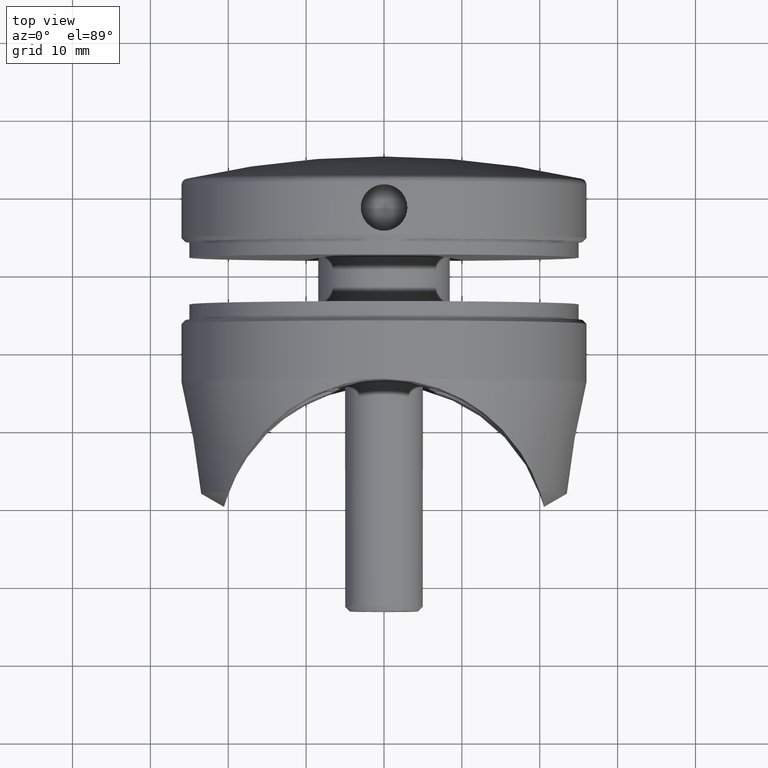
[diagram: clean part render]
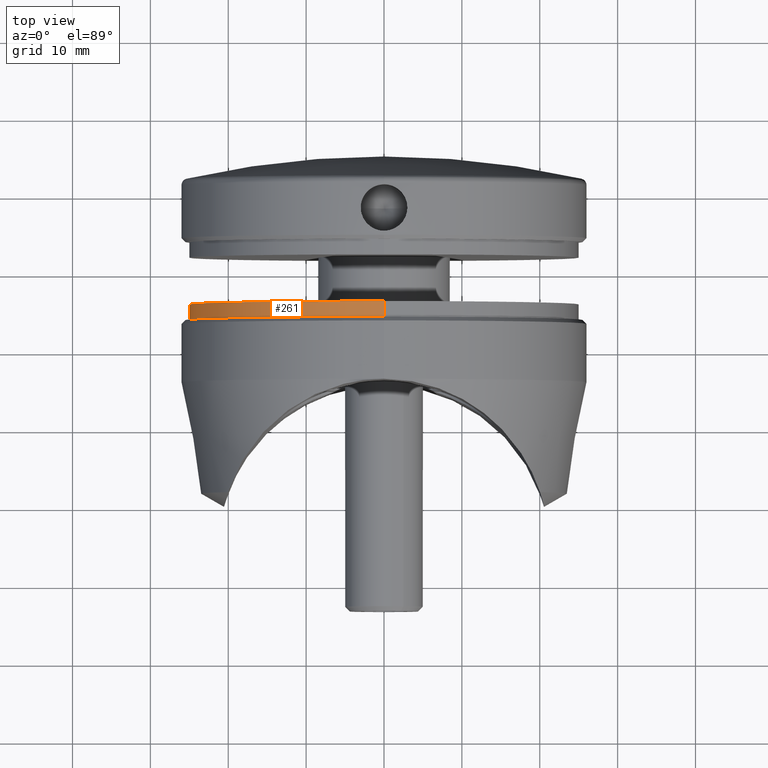
[diagram: same view with one face highlighted and labeled with its STEP entity id]
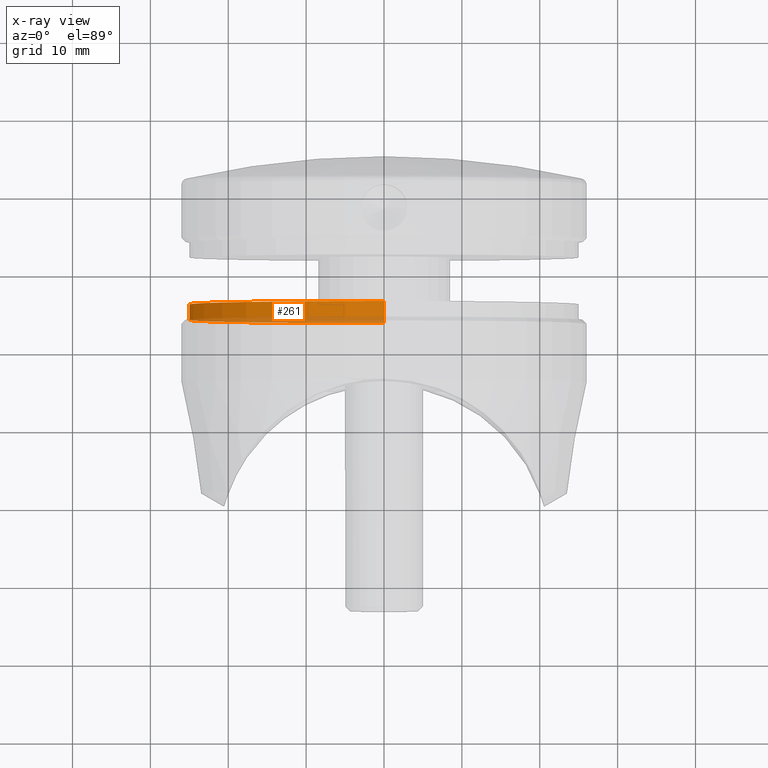
[diagram: x-ray of the same camera — body ghosted, the highlighted face saturated]
A machine part, top view. The second image highlights one B-rep face of the part: STEP entity #261.
The next image is the same camera in x-ray: the body ghosted, the highlighted face saturated — about 25% of this face is hidden behind the body in this view.
In plain terms, the highlighted cylindrical surface (partial cylindrical patch) has radius 25 mm, axis along (-0, -1, -0).
Its self-contained STEP definition (entity closure, byte-faithful):
#6 = ORIENTED_EDGE ( 'NONE', *, *, #4155, .T. ) ;
#261 = ADVANCED_FACE ( 'NONE', ( #5665 ), #1268, .T. ) ;
#400 = AXIS2_PLACEMENT_3D ( 'NONE', #7064, #15627, #8302 ) ;
#1256 = VERTEX_POINT ( 'NONE', #10499 ) ;
#1268 = CYLINDRICAL_SURFACE ( 'NONE', #11538, 25.00000000000000000 ) ;
#1302 = CARTESIAN_POINT ( 'NONE',  ( 0.000000000000000000, -1.000000000000000000, -25.00000000000000000 ) ) ;
#1605 = ORIENTED_EDGE ( 'NONE', *, *, #13771, .F. ) ;
#2272 = CARTESIAN_POINT ( 'NONE',  ( 3.061616997868383043E-15, 1.000000000000000000, 25.00000000000000000 ) ) ;
#2957 = VERTEX_POINT ( 'NONE', #3136 ) ;
#3136 = CARTESIAN_POINT ( 'NONE',  ( 3.061616997868383043E-15, -1.000000000000000000, 25.00000000000000000 ) ) ;
#3454 = CIRCLE ( 'NONE', #5480, 25.00000000000000000 ) ;
#3459 = VECTOR ( 'NONE', #12991, 1000.000000000000000 ) ;
#4001 = CARTESIAN_POINT ( 'NONE',  ( 0.000000000000000000, 1.000000000000000000, 0.000000000000000000 ) ) ;
#4111 = CARTESIAN_POINT ( 'NONE',  ( 0.000000000000000000, 1.000000000000000000, 0.000000000000000000 ) ) ;
#4155 = EDGE_CURVE ( 'NONE', #1256, #7961, #8807, .T. ) ;
#4757 = VECTOR ( 'NONE', #6109, 1000.000000000000000 ) ;
#5357 = DIRECTION ( 'NONE',  ( 0.000000000000000000, 1.000000000000000000, 0.000000000000000000 ) ) ;
#5480 = AXIS2_PLACEMENT_3D ( 'NONE', #4111, #5357, #11377 ) ;
#5665 = FACE_OUTER_BOUND ( 'NONE', #13503, .T. ) ;
#6109 = DIRECTION ( 'NONE',  ( -0.000000000000000000, -1.000000000000000000, -0.000000000000000000 ) ) ;
#6206 = CIRCLE ( 'NONE', #400, 25.00000000000000000 ) ;
#6407 = DIRECTION ( 'NONE',  ( 0.000000000000000000, 0.000000000000000000, -1.000000000000000000 ) ) ;
#6487 = ORIENTED_EDGE ( 'NONE', *, *, #10655, .T. ) ;
#7064 = CARTESIAN_POINT ( 'NONE',  ( 0.000000000000000000, -1.000000000000000000, 0.000000000000000000 ) ) ;
#7533 = LINE ( 'NONE', #9244, #3459 ) ;
#7961 = VERTEX_POINT ( 'NONE', #1302 ) ;
#8302 = DIRECTION ( 'NONE',  ( 0.000000000000000000, 0.000000000000000000, 1.000000000000000000 ) ) ;
#8807 = LINE ( 'NONE', #12112, #4757 ) ;
#9244 = CARTESIAN_POINT ( 'NONE',  ( 3.061616997868383043E-15, 1.000000000000000000, 25.00000000000000000 ) ) ;
#10499 = CARTESIAN_POINT ( 'NONE',  ( 0.000000000000000000, 1.000000000000000000, -25.00000000000000000 ) ) ;
#10655 = EDGE_CURVE ( 'NONE', #7961, #2957, #6206, .T. ) ;
#10887 = ORIENTED_EDGE ( 'NONE', *, *, #12442, .F. ) ;
#11377 = DIRECTION ( 'NONE',  ( 0.000000000000000000, 0.000000000000000000, 1.000000000000000000 ) ) ;
#11538 = AXIS2_PLACEMENT_3D ( 'NONE', #4001, #13731, #6407 ) ;
#12112 = CARTESIAN_POINT ( 'NONE',  ( 0.000000000000000000, 1.000000000000000000, -25.00000000000000000 ) ) ;
#12442 = EDGE_CURVE ( 'NONE', #1256, #14056, #3454, .T. ) ;
#12991 = DIRECTION ( 'NONE',  ( -0.000000000000000000, -1.000000000000000000, -0.000000000000000000 ) ) ;
#13503 = EDGE_LOOP ( 'NONE', ( #1605, #10887, #6, #6487 ) ) ;
#13731 = DIRECTION ( 'NONE',  ( -0.000000000000000000, -1.000000000000000000, -0.000000000000000000 ) ) ;
#13771 = EDGE_CURVE ( 'NONE', #14056, #2957, #7533, .T. ) ;
#14056 = VERTEX_POINT ( 'NONE', #2272 ) ;
#15627 = DIRECTION ( 'NONE',  ( 0.000000000000000000, 1.000000000000000000, 0.000000000000000000 ) ) ;